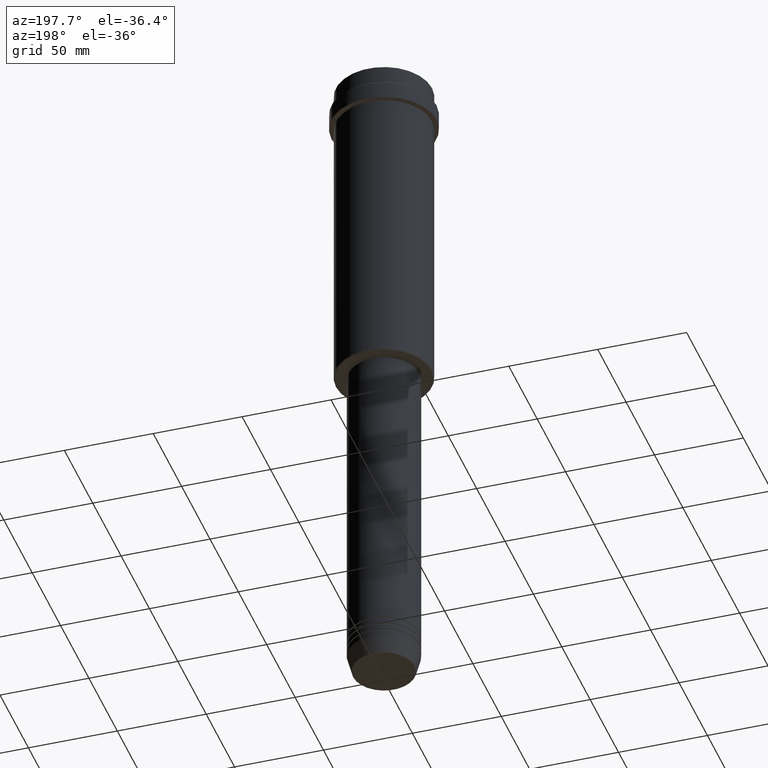
[diagram: clean part render]
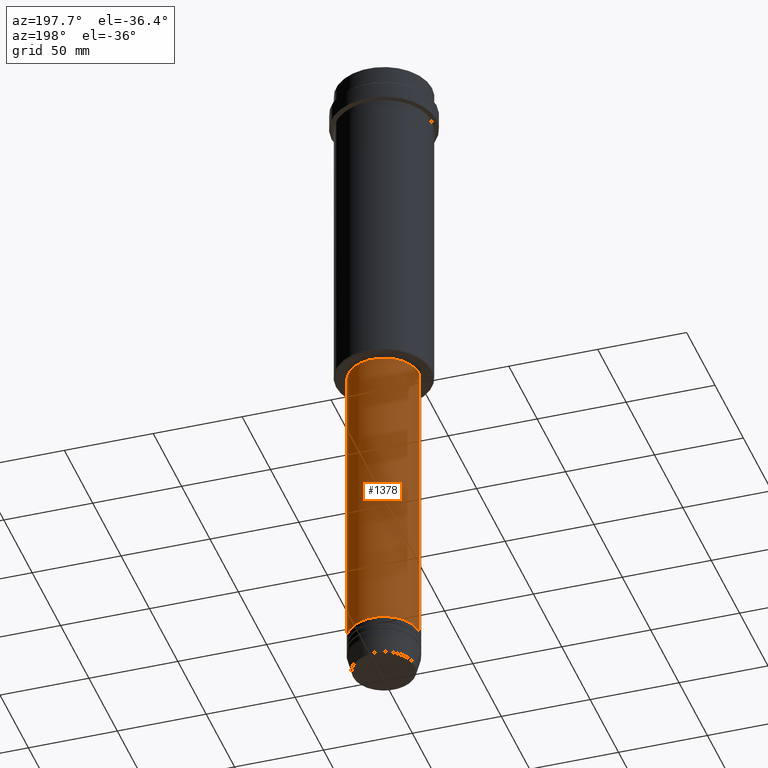
[diagram: same view with one face highlighted and labeled with its STEP entity id]
A machine part, auxiliary view. The second image highlights one B-rep face of the part: STEP entity #1378.
In plain terms, the highlighted cylindrical surface (partial cylindrical patch) has radius 20 mm, axis along (-0, -0, 1).
Its self-contained STEP definition (entity closure, byte-faithful):
#9 = EDGE_CURVE ( 'NONE', #348, #1359, #1004, .T. ) ;
#10 = AXIS2_PLACEMENT_3D ( 'NONE', #929, #508, #1361 ) ;
#38 = CARTESIAN_POINT ( 'NONE',  ( -20.00000000000000000, 2.449293598294706513E-15, -188.9999999999999147 ) ) ;
#103 = ORIENTED_EDGE ( 'NONE', *, *, #1316, .T. ) ;
#210 = VECTOR ( 'NONE', #787, 1000.000000000000000 ) ;
#337 = EDGE_CURVE ( 'NONE', #647, #982, #340, .T. ) ;
#340 = LINE ( 'NONE', #367, #210 ) ;
#348 = VERTEX_POINT ( 'NONE', #462 ) ;
#367 = CARTESIAN_POINT ( 'NONE',  ( 20.00000000000000000, 0.000000000000000000, 0.000000000000000000 ) ) ;
#446 = AXIS2_PLACEMENT_3D ( 'NONE', #1255, #1269, #719 ) ;
#457 = CARTESIAN_POINT ( 'NONE',  ( -20.00000000000000000, 2.449293598294706513E-15, 0.000000000000000000 ) ) ;
#462 = CARTESIAN_POINT ( 'NONE',  ( -20.00000000000000000, 2.449293598294706513E-15, -360.9999999999998863 ) ) ;
#508 = DIRECTION ( 'NONE',  ( -0.000000000000000000, -0.000000000000000000, 1.000000000000000000 ) ) ;
#524 = CARTESIAN_POINT ( 'NONE',  ( 20.00000000000000000, 0.000000000000000000, -188.9999999999999147 ) ) ;
#535 = EDGE_LOOP ( 'NONE', ( #103, #857, #1300, #847 ) ) ;
#569 = AXIS2_PLACEMENT_3D ( 'NONE', #1355, #1263, #1143 ) ;
#647 = VERTEX_POINT ( 'NONE', #1314 ) ;
#719 = DIRECTION ( 'NONE',  ( 1.000000000000000000, 0.000000000000000000, 0.000000000000000000 ) ) ;
#787 = DIRECTION ( 'NONE',  ( -0.000000000000000000, -0.000000000000000000, 1.000000000000000000 ) ) ;
#821 = FACE_OUTER_BOUND ( 'NONE', #535, .T. ) ;
#847 = ORIENTED_EDGE ( 'NONE', *, *, #337, .F. ) ;
#857 = ORIENTED_EDGE ( 'NONE', *, *, #9, .T. ) ;
#883 = VECTOR ( 'NONE', #1339, 1000.000000000000000 ) ;
#929 = CARTESIAN_POINT ( 'NONE',  ( 0.000000000000000000, 0.000000000000000000, -188.9999999999999147 ) ) ;
#931 = EDGE_CURVE ( 'NONE', #982, #1359, #1090, .T. ) ;
#982 = VERTEX_POINT ( 'NONE', #524 ) ;
#1004 = LINE ( 'NONE', #457, #883 ) ;
#1090 = CIRCLE ( 'NONE', #10, 20.00000000000000000 ) ;
#1143 = DIRECTION ( 'NONE',  ( 1.000000000000000000, 0.000000000000000000, 0.000000000000000000 ) ) ;
#1209 = CIRCLE ( 'NONE', #569, 20.00000000000000000 ) ;
#1255 = CARTESIAN_POINT ( 'NONE',  ( 0.000000000000000000, 0.000000000000000000, 0.000000000000000000 ) ) ;
#1263 = DIRECTION ( 'NONE',  ( -0.000000000000000000, -0.000000000000000000, 1.000000000000000000 ) ) ;
#1269 = DIRECTION ( 'NONE',  ( -0.000000000000000000, -0.000000000000000000, 1.000000000000000000 ) ) ;
#1300 = ORIENTED_EDGE ( 'NONE', *, *, #931, .F. ) ;
#1314 = CARTESIAN_POINT ( 'NONE',  ( 20.00000000000000000, 0.000000000000000000, -360.9999999999998863 ) ) ;
#1316 = EDGE_CURVE ( 'NONE', #647, #348, #1209, .T. ) ;
#1339 = DIRECTION ( 'NONE',  ( -0.000000000000000000, -0.000000000000000000, 1.000000000000000000 ) ) ;
#1355 = CARTESIAN_POINT ( 'NONE',  ( 0.000000000000000000, 0.000000000000000000, -360.9999999999998863 ) ) ;
#1359 = VERTEX_POINT ( 'NONE', #38 ) ;
#1361 = DIRECTION ( 'NONE',  ( 1.000000000000000000, 0.000000000000000000, 0.000000000000000000 ) ) ;
#1375 = CYLINDRICAL_SURFACE ( 'NONE', #446, 20.00000000000000000 ) ;
#1378 = ADVANCED_FACE ( 'NONE', ( #821 ), #1375, .T. ) ;